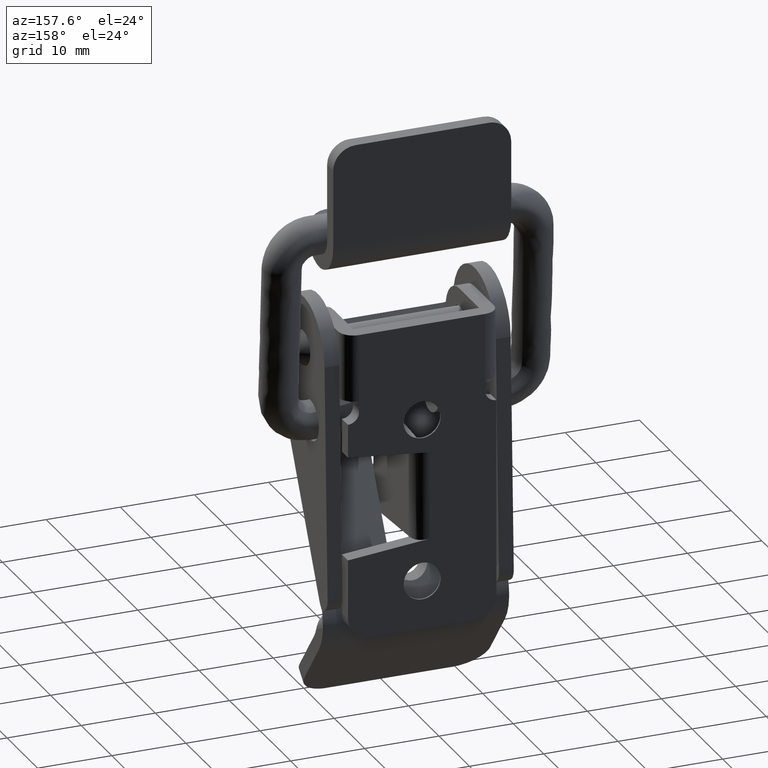
[diagram: clean part render]
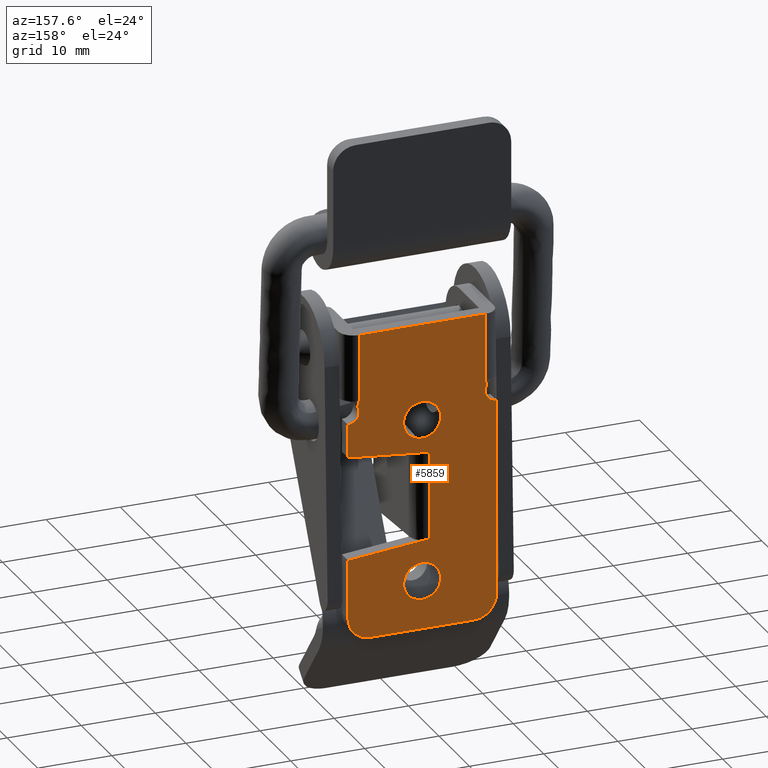
[diagram: same view with one face highlighted and labeled with its STEP entity id]
A machine part, auxiliary view. The second image highlights one B-rep face of the part: STEP entity #5859.
In plain terms, the highlighted face is a freeform B-spline surface patch.
Its self-contained STEP definition (entity closure, byte-faithful):
#3578=CARTESIAN_POINT('',(4.500000000000000,-2.495337215140719,-25.652617766727470));
#3579=VERTEX_POINT('',#3578);
#3585=CARTESIAN_POINT('',(4.500000000000000,0.0,-28.0));
#3586=VERTEX_POINT('',#3585);
#3587=CARTESIAN_POINT('',(4.500000000000000,0.0,-28.0));
#3588=CARTESIAN_POINT('',(4.500000000000001,-2.351768549584170,-27.999999999999993));
#3589=CARTESIAN_POINT('',(4.500000000000000,-2.495337215140720,-25.652617766727467));
#3597=(BOUNDED_CURVE()B_SPLINE_CURVE(2,(#3587,#3588,#3589),.UNSPECIFIED.,.F.,.U.)B_SPLINE_CURVE_WITH_KNOTS((3,3),(0.500000000000000,0.739333209936624),.UNSPECIFIED.)CURVE()GEOMETRIC_REPRESENTATION_ITEM()RATIONAL_B_SPLINE_CURVE((1.0,0.719603703090825,0.976072572530575))REPRESENTATION_ITEM(''));
#3598=EDGE_CURVE('',#3586,#3579,#3597,.T.);
#3600=CARTESIAN_POINT('',(4.500000000000000,2.482523815899885,-25.204914413280029));
#3601=VERTEX_POINT('',#3600);
#3602=CARTESIAN_POINT('',(4.500000000000000,2.482523815899885,-25.204914413280026));
#3603=CARTESIAN_POINT('',(4.500000000000001,2.500000000000000,-25.351939700791331));
#3604=CARTESIAN_POINT('',(4.500000000000000,2.500000000000000,-25.500000000000000));
#3605=CARTESIAN_POINT('',(4.500000000000000,2.500000000000000,-27.999999999999996));
#3606=CARTESIAN_POINT('',(4.500000000000000,0.0,-28.0));
#3614=(BOUNDED_CURVE()B_SPLINE_CURVE(2,(#3602,#3603,#3604,#3605,#3606),.UNSPECIFIED.,.F.,.U.)B_SPLINE_CURVE_WITH_KNOTS((3,2,3),(0.229562473505014,0.250000000000000,0.500000000000000),.UNSPECIFIED.)CURVE()GEOMETRIC_REPRESENTATION_ITEM()RATIONAL_B_SPLINE_CURVE((0.956026754167050,0.976055948321193,1.0,0.707106781186548,1.0))REPRESENTATION_ITEM(''));
#3615=EDGE_CURVE('',#3601,#3586,#3614,.T.);
#3645=CARTESIAN_POINT('',(4.500000000000000,0.0,-23.0));
#3646=VERTEX_POINT('',#3645);
#3647=CARTESIAN_POINT('',(4.500000000000000,0.0,-23.0));
#3648=CARTESIAN_POINT('',(4.499999999999999,2.220436314737770,-23.000000000000004));
#3649=CARTESIAN_POINT('',(4.500000000000000,2.482523815899885,-25.204914413280026));
#3657=(BOUNDED_CURVE()B_SPLINE_CURVE(2,(#3647,#3648,#3649),.UNSPECIFIED.,.F.,.U.)B_SPLINE_CURVE_WITH_KNOTS((3,3),(0.0,0.229562473505014),.UNSPECIFIED.)CURVE()GEOMETRIC_REPRESENTATION_ITEM()RATIONAL_B_SPLINE_CURVE((1.0,0.731050832865354,0.956026754167050))REPRESENTATION_ITEM(''));
#3658=EDGE_CURVE('',#3646,#3601,#3657,.T.);
#3660=CARTESIAN_POINT('',(4.500000000000000,-2.495337215140719,-25.652617766727463));
#3661=CARTESIAN_POINT('',(4.500000000000000,-2.500000000000000,-25.576380112169893));
#3662=CARTESIAN_POINT('',(4.500000000000000,-2.500000000000000,-25.500000000000000));
#3663=CARTESIAN_POINT('',(4.500000000000000,-2.500000000000000,-22.999999999999993));
#3664=CARTESIAN_POINT('',(4.500000000000000,0.0,-23.0));
#3672=(BOUNDED_CURVE()B_SPLINE_CURVE(2,(#3660,#3661,#3662,#3663,#3664),.UNSPECIFIED.,.F.,.U.)B_SPLINE_CURVE_WITH_KNOTS((3,2,3),(0.739333209936625,0.750000000000000,1.0),.UNSPECIFIED.)CURVE()GEOMETRIC_REPRESENTATION_ITEM()RATIONAL_B_SPLINE_CURVE((0.976072572530575,0.987503078095722,1.0,0.707106781186548,1.0))REPRESENTATION_ITEM(''));
#3673=EDGE_CURVE('',#3579,#3646,#3672,.T.);
#3906=CARTESIAN_POINT('',(4.500000000000000,-2.495337215140719,-47.652617766727467));
#3907=VERTEX_POINT('',#3906);
#3913=CARTESIAN_POINT('',(4.500000000000000,0.0,-50.0));
#3914=VERTEX_POINT('',#3913);
#3915=CARTESIAN_POINT('',(4.500000000000000,0.0,-50.0));
#3916=CARTESIAN_POINT('',(4.500000000000001,-2.351768549584170,-50.0));
#3917=CARTESIAN_POINT('',(4.500000000000000,-2.495337215140720,-47.652617766727474));
#3925=(BOUNDED_CURVE()B_SPLINE_CURVE(2,(#3915,#3916,#3917),.UNSPECIFIED.,.F.,.U.)B_SPLINE_CURVE_WITH_KNOTS((3,3),(0.500000000000000,0.739333209936624),.UNSPECIFIED.)CURVE()GEOMETRIC_REPRESENTATION_ITEM()RATIONAL_B_SPLINE_CURVE((1.0,0.719603703090825,0.976072572530575))REPRESENTATION_ITEM(''));
#3926=EDGE_CURVE('',#3914,#3907,#3925,.T.);
#3928=CARTESIAN_POINT('',(4.500000000000000,2.482523815899885,-47.204914413280022));
#3929=VERTEX_POINT('',#3928);
#3930=CARTESIAN_POINT('',(4.500000000000001,2.482523815899885,-47.204914413280022));
#3931=CARTESIAN_POINT('',(4.500000000000001,2.500000000000000,-47.351939700791327));
#3932=CARTESIAN_POINT('',(4.500000000000000,2.500000000000000,-47.500000000000000));
#3933=CARTESIAN_POINT('',(4.500000000000000,2.500000000000000,-50.0));
#3934=CARTESIAN_POINT('',(4.500000000000000,0.0,-50.0));
#3942=(BOUNDED_CURVE()B_SPLINE_CURVE(2,(#3930,#3931,#3932,#3933,#3934),.UNSPECIFIED.,.F.,.U.)B_SPLINE_CURVE_WITH_KNOTS((3,2,3),(0.229562473505013,0.250000000000000,0.500000000000000),.UNSPECIFIED.)CURVE()GEOMETRIC_REPRESENTATION_ITEM()RATIONAL_B_SPLINE_CURVE((0.956026754167049,0.976055948321193,1.0,0.707106781186548,1.0))REPRESENTATION_ITEM(''));
#3943=EDGE_CURVE('',#3929,#3914,#3942,.T.);
#3973=CARTESIAN_POINT('',(4.500000000000000,0.0,-45.0));
#3974=VERTEX_POINT('',#3973);
#3975=CARTESIAN_POINT('',(4.500000000000000,0.0,-45.0));
#3976=CARTESIAN_POINT('',(4.500000000000001,2.220436314737763,-44.999999999999993));
#3977=CARTESIAN_POINT('',(4.500000000000000,2.482523815899885,-47.204914413280022));
#3985=(BOUNDED_CURVE()B_SPLINE_CURVE(2,(#3975,#3976,#3977),.UNSPECIFIED.,.F.,.U.)B_SPLINE_CURVE_WITH_KNOTS((3,3),(0.0,0.229562473505013),.UNSPECIFIED.)CURVE()GEOMETRIC_REPRESENTATION_ITEM()RATIONAL_B_SPLINE_CURVE((1.0,0.731050832865355,0.956026754167049))REPRESENTATION_ITEM(''));
#3986=EDGE_CURVE('',#3974,#3929,#3985,.T.);
#3988=CARTESIAN_POINT('',(4.500000000000000,-2.495337215140719,-47.652617766727467));
#3989=CARTESIAN_POINT('',(4.500000000000000,-2.500000000000000,-47.576380112169886));
#3990=CARTESIAN_POINT('',(4.500000000000000,-2.500000000000000,-47.500000000000000));
#3991=CARTESIAN_POINT('',(4.500000000000000,-2.500000000000000,-45.0));
#3992=CARTESIAN_POINT('',(4.500000000000000,0.0,-45.0));
#4000=(BOUNDED_CURVE()B_SPLINE_CURVE(2,(#3988,#3989,#3990,#3991,#3992),.UNSPECIFIED.,.F.,.U.)B_SPLINE_CURVE_WITH_KNOTS((3,2,3),(0.739333209936625,0.750000000000000,1.0),.UNSPECIFIED.)CURVE()GEOMETRIC_REPRESENTATION_ITEM()RATIONAL_B_SPLINE_CURVE((0.976072572530575,0.987503078095722,1.0,0.707106781186548,1.0))REPRESENTATION_ITEM(''));
#4001=EDGE_CURVE('',#3907,#3974,#4000,.T.);
#4600=CARTESIAN_POINT('',(4.499999999999915,1.0,-41.899999999999999));
#4601=VERTEX_POINT('',#4600);
#4615=CARTESIAN_POINT('',(4.499999999999949,1.0,-30.100000000000001));
#4616=VERTEX_POINT('',#4615);
#4617=CARTESIAN_POINT('',(4.499999999999949,1.0,-30.100000000000001));
#4618=CARTESIAN_POINT('',(4.499999999999915,1.0,-41.899999999999999));
#4619=QUASI_UNIFORM_CURVE('',1,(#4617,#4618),.UNSPECIFIED.,.F.,.U.);
#4620=EDGE_CURVE('',#4616,#4601,#4619,.T.);
#4810=CARTESIAN_POINT('',(4.499999999999949,8.719497801256580,-22.218773964199048));
#4811=VERTEX_POINT('',#4810);
#4831=CARTESIAN_POINT('',(4.499999999999915,8.500000000000000,-21.500000000000000));
#4832=VERTEX_POINT('',#4831);
#4846=CARTESIAN_POINT('',(4.499999999999915,8.719497801256591,-22.218773964199048));
#4847=CARTESIAN_POINT('',(4.499999999999915,8.668037530786140,-22.104185413917300));
#4848=CARTESIAN_POINT('',(4.499999999999916,8.626276212656075,-21.985542599464321));
#4849=CARTESIAN_POINT('',(4.499999999999916,8.556322127258062,-21.744661734685721));
#4850=CARTESIAN_POINT('',(4.499999999999915,8.528055825389401,-21.622286071360641));
#4851=CARTESIAN_POINT('',(4.499999999999915,8.500000000000000,-21.500000000000000));
#4852=B_SPLINE_CURVE_WITH_KNOTS('',3,(#4846,#4847,#4848,#4849,#4850,#4851),.UNSPECIFIED.,.F.,.U.,(4,2,4),(0.0,0.500000000000000,1.0),.UNSPECIFIED.);
#4853=EDGE_CURVE('',#4811,#4832,#4852,.T.);
#4896=CARTESIAN_POINT('',(4.499999999999915,-8.500000000000000,-21.500000000000000));
#4897=VERTEX_POINT('',#4896);
#4898=CARTESIAN_POINT('',(4.499999999999949,-8.719497801256560,-22.218773964198999));
#4899=VERTEX_POINT('',#4898);
#4900=CARTESIAN_POINT('',(4.499999999999915,-8.500000000000000,-21.500000000000000));
#4901=CARTESIAN_POINT('',(4.499999999999914,-8.528055825390089,-21.622286071360492));
#4902=CARTESIAN_POINT('',(4.499999999999913,-8.556322127258065,-21.744661734685710));
#4903=CARTESIAN_POINT('',(4.499999999999914,-8.626276212656061,-21.985542599464271));
#4904=CARTESIAN_POINT('',(4.499999999999916,-8.668037530786126,-22.104185413917250));
#4905=CARTESIAN_POINT('',(4.499999999999915,-8.719497801256569,-22.218773964198999));
#4906=B_SPLINE_CURVE_WITH_KNOTS('',3,(#4900,#4901,#4902,#4903,#4904,#4905),.UNSPECIFIED.,.F.,.U.,(4,2,4),(0.0,0.500000000000000,1.0),.UNSPECIFIED.);
#4907=EDGE_CURVE('',#4897,#4899,#4906,.T.);
#4964=CARTESIAN_POINT('',(4.499999999999949,-10.0,-51.0));
#4965=VERTEX_POINT('',#4964);
#4971=CARTESIAN_POINT('',(4.499999999999949,-10.0,-43.0));
#4972=VERTEX_POINT('',#4971);
#4973=CARTESIAN_POINT('',(4.499999999999949,-10.0,-43.0));
#4974=CARTESIAN_POINT('',(4.499999999999949,-10.0,-51.0));
#4975=QUASI_UNIFORM_CURVE('',1,(#4973,#4974),.UNSPECIFIED.,.F.,.U.);
#4976=EDGE_CURVE('',#4972,#4965,#4975,.T.);
#4997=CARTESIAN_POINT('',(4.499999999999915,1.0,-41.899999999999999));
#4998=CARTESIAN_POINT('',(4.499999999999949,-10.0,-43.0));
#4999=QUASI_UNIFORM_CURVE('',1,(#4997,#4998),.UNSPECIFIED.,.F.,.U.);
#5000=EDGE_CURVE('',#4601,#4972,#4999,.T.);
#5019=CARTESIAN_POINT('',(4.499999999999949,-10.0,-29.0));
#5020=VERTEX_POINT('',#5019);
#5021=CARTESIAN_POINT('',(4.499999999999949,-10.0,-29.0));
#5022=CARTESIAN_POINT('',(4.499999999999949,1.0,-30.100000000000001));
#5023=QUASI_UNIFORM_CURVE('',1,(#5021,#5022),.UNSPECIFIED.,.F.,.U.);
#5024=EDGE_CURVE('',#5020,#4616,#5023,.T.);
#5047=CARTESIAN_POINT('',(4.499999999999949,-10.0,-24.500000000000000));
#5048=VERTEX_POINT('',#5047);
#5049=CARTESIAN_POINT('',(4.499999999999949,-10.0,-24.500000000000000));
#5050=CARTESIAN_POINT('',(4.499999999999949,-10.0,-29.0));
#5051=QUASI_UNIFORM_CURVE('',1,(#5049,#5050),.UNSPECIFIED.,.F.,.U.);
#5052=EDGE_CURVE('',#5048,#5020,#5051,.T.);
#5080=CARTESIAN_POINT('',(4.499999999999949,-10.0,-24.500000000000000));
#5081=CARTESIAN_POINT('',(4.499999999999949,-9.121827321137884,-24.500000000000000));
#5082=CARTESIAN_POINT('',(4.499999999999949,-8.691978774311849,-23.734220997485949));
#5083=CARTESIAN_POINT('',(4.499999999999949,-8.262130227485812,-22.968441994971908));
#5084=CARTESIAN_POINT('',(4.499999999999949,-8.719497801256598,-22.218773964199020));
#5092=(BOUNDED_CURVE()B_SPLINE_CURVE(2,(#5080,#5081,#5082,#5083,#5084),.UNSPECIFIED.,.F.,.U.)B_SPLINE_CURVE_WITH_KNOTS((3,2,3),(0.0,0.500000000000000,1.0),.UNSPECIFIED.)CURVE()GEOMETRIC_REPRESENTATION_ITEM()RATIONAL_B_SPLINE_CURVE((1.0,0.862983390625403,1.0,0.862983390625403,1.0))REPRESENTATION_ITEM(''));
#5093=EDGE_CURVE('',#5048,#4899,#5092,.T.);
#5148=CARTESIAN_POINT('',(4.499999999999949,10.0,-24.500000000000000));
#5149=VERTEX_POINT('',#5148);
#5150=CARTESIAN_POINT('',(4.499999999999949,8.719497801256582,-22.218773964199048));
#5151=CARTESIAN_POINT('',(4.499999999999950,8.262130227485818,-22.968441994971933));
#5152=CARTESIAN_POINT('',(4.499999999999949,8.691978774311858,-23.734220997485970));
#5153=CARTESIAN_POINT('',(4.499999999999950,9.121827321137895,-24.499999999999996));
#5154=CARTESIAN_POINT('',(4.499999999999949,10.0,-24.500000000000000));
#5162=(BOUNDED_CURVE()B_SPLINE_CURVE(2,(#5150,#5151,#5152,#5153,#5154),.UNSPECIFIED.,.F.,.U.)B_SPLINE_CURVE_WITH_KNOTS((3,2,3),(0.0,0.500000000000000,1.0),.UNSPECIFIED.)CURVE()GEOMETRIC_REPRESENTATION_ITEM()RATIONAL_B_SPLINE_CURVE((1.0,0.862983390625406,1.0,0.862983390625406,1.0))REPRESENTATION_ITEM(''));
#5163=EDGE_CURVE('',#4811,#5149,#5162,.T.);
#5203=CARTESIAN_POINT('',(4.499999999999949,10.0,-51.0));
#5204=VERTEX_POINT('',#5203);
#5205=CARTESIAN_POINT('',(4.499999999999949,10.0,-51.0));
#5206=CARTESIAN_POINT('',(4.499999999999949,10.0,-24.500000000000000));
#5207=QUASI_UNIFORM_CURVE('',1,(#5205,#5206),.UNSPECIFIED.,.F.,.U.);
#5208=EDGE_CURVE('',#5204,#5149,#5207,.T.);
#5248=CARTESIAN_POINT('',(4.499999999999949,7.0,-54.0));
#5249=VERTEX_POINT('',#5248);
#5250=CARTESIAN_POINT('',(4.499999999999949,7.0,-54.0));
#5251=CARTESIAN_POINT('',(4.499999999999949,10.000000000000002,-54.0));
#5252=CARTESIAN_POINT('',(4.499999999999949,10.0,-51.0));
#5260=(BOUNDED_CURVE()B_SPLINE_CURVE(2,(#5250,#5251,#5252),.UNSPECIFIED.,.F.,.U.)CURVE()GEOMETRIC_REPRESENTATION_ITEM()QUASI_UNIFORM_CURVE()RATIONAL_B_SPLINE_CURVE((1.0,0.707106781186548,1.0))REPRESENTATION_ITEM(''));
#5261=EDGE_CURVE('',#5249,#5204,#5260,.T.);
#5284=CARTESIAN_POINT('',(4.499999999999949,-7.0,-54.0));
#5285=VERTEX_POINT('',#5284);
#5286=CARTESIAN_POINT('',(4.499999999999949,-7.0,-54.0));
#5287=CARTESIAN_POINT('',(4.499999999999949,7.0,-54.0));
#5288=QUASI_UNIFORM_CURVE('',1,(#5286,#5287),.UNSPECIFIED.,.F.,.U.);
#5289=EDGE_CURVE('',#5285,#5249,#5288,.T.);
#5327=CARTESIAN_POINT('',(4.499999999999949,-10.0,-51.0));
#5328=CARTESIAN_POINT('',(4.499999999999949,-10.000000000000002,-54.0));
#5329=CARTESIAN_POINT('',(4.499999999999949,-7.0,-54.0));
#5337=(BOUNDED_CURVE()B_SPLINE_CURVE(2,(#5327,#5328,#5329),.UNSPECIFIED.,.F.,.U.)CURVE()GEOMETRIC_REPRESENTATION_ITEM()QUASI_UNIFORM_CURVE()RATIONAL_B_SPLINE_CURVE((1.0,0.707106781186548,1.0))REPRESENTATION_ITEM(''));
#5338=EDGE_CURVE('',#4965,#5285,#5337,.T.);
#5522=CARTESIAN_POINT('',(4.499999999999915,-8.500000000000000,-12.500000000000000));
#5523=VERTEX_POINT('',#5522);
#5537=CARTESIAN_POINT('',(4.499999999999915,8.500000000000000,-12.500000000000000));
#5538=VERTEX_POINT('',#5537);
#5539=CARTESIAN_POINT('',(4.499999999999915,8.500000000000000,-12.500000000000000));
#5540=CARTESIAN_POINT('',(4.499999999999915,-8.500000000000000,-12.500000000000000));
#5541=QUASI_UNIFORM_CURVE('',1,(#5539,#5540),.UNSPECIFIED.,.F.,.U.);
#5542=EDGE_CURVE('',#5538,#5523,#5541,.T.);
#5660=CARTESIAN_POINT('',(4.499999999999915,-8.500000000000000,-21.500000000000000));
#5661=CARTESIAN_POINT('',(4.499999999999915,-8.500000000000000,-12.500000000000000));
#5662=QUASI_UNIFORM_CURVE('',1,(#5660,#5661),.UNSPECIFIED.,.F.,.U.);
#5663=EDGE_CURVE('',#4897,#5523,#5662,.T.);
#5683=CARTESIAN_POINT('',(4.499999999999915,8.500000000000000,-21.500000000000000));
#5684=CARTESIAN_POINT('',(4.499999999999915,8.500000000000000,-12.500000000000000));
#5685=QUASI_UNIFORM_CURVE('',1,(#5683,#5684),.UNSPECIFIED.,.F.,.U.);
#5686=EDGE_CURVE('',#4832,#5538,#5685,.T.);
#5824=CARTESIAN_POINT('',(4.499999999999915,10.998999961236120,-56.072924919564947));
#5825=CARTESIAN_POINT('',(4.499999999999915,-10.999000497677921,-56.072924919564947));
#5826=CARTESIAN_POINT('',(4.499999999999915,10.998999961236120,-10.427073967318311));
#5827=CARTESIAN_POINT('',(4.499999999999915,-10.999000497677921,-10.427073967318311));
#5828=B_SPLINE_SURFACE_WITH_KNOTS('',1,1,((#5824,#5826),(#5825,#5827)),.UNSPECIFIED.,.F.,.F.,.U.,(2,2),(2,2),(0.0,21.998000458914039),(0.0,45.645850952246647),.UNSPECIFIED.);
#5829=ORIENTED_EDGE('',*,*,#4620,.T.);
#5830=ORIENTED_EDGE('',*,*,#5000,.T.);
#5831=ORIENTED_EDGE('',*,*,#4976,.T.);
#5832=ORIENTED_EDGE('',*,*,#5338,.T.);
#5833=ORIENTED_EDGE('',*,*,#5289,.T.);
#5834=ORIENTED_EDGE('',*,*,#5261,.T.);
#5835=ORIENTED_EDGE('',*,*,#5208,.T.);
#5836=ORIENTED_EDGE('',*,*,#5163,.F.);
#5837=ORIENTED_EDGE('',*,*,#4853,.T.);
#5838=ORIENTED_EDGE('',*,*,#5686,.T.);
#5839=ORIENTED_EDGE('',*,*,#5542,.T.);
#5840=ORIENTED_EDGE('',*,*,#5663,.F.);
#5841=ORIENTED_EDGE('',*,*,#4907,.T.);
#5842=ORIENTED_EDGE('',*,*,#5093,.F.);
#5843=ORIENTED_EDGE('',*,*,#5052,.T.);
#5844=ORIENTED_EDGE('',*,*,#5024,.T.);
#5845=EDGE_LOOP('',(#5829,#5830,#5831,#5832,#5833,#5834,#5835,#5836,#5837,#5838,#5839,#5840,#5841,#5842,#5843,#5844));
#5846=FACE_OUTER_BOUND('',#5845,.T.);
#5847=ORIENTED_EDGE('',*,*,#3926,.T.);
#5848=ORIENTED_EDGE('',*,*,#4001,.T.);
#5849=ORIENTED_EDGE('',*,*,#3986,.T.);
#5850=ORIENTED_EDGE('',*,*,#3943,.T.);
#5851=EDGE_LOOP('',(#5847,#5848,#5849,#5850));
#5852=FACE_BOUND('',#5851,.T.);
#5853=ORIENTED_EDGE('',*,*,#3598,.T.);
#5854=ORIENTED_EDGE('',*,*,#3673,.T.);
#5855=ORIENTED_EDGE('',*,*,#3658,.T.);
#5856=ORIENTED_EDGE('',*,*,#3615,.T.);
#5857=EDGE_LOOP('',(#5853,#5854,#5855,#5856));
#5858=FACE_BOUND('',#5857,.T.);
#5859=ADVANCED_FACE('',(#5846,#5852,#5858),#5828,.F.);